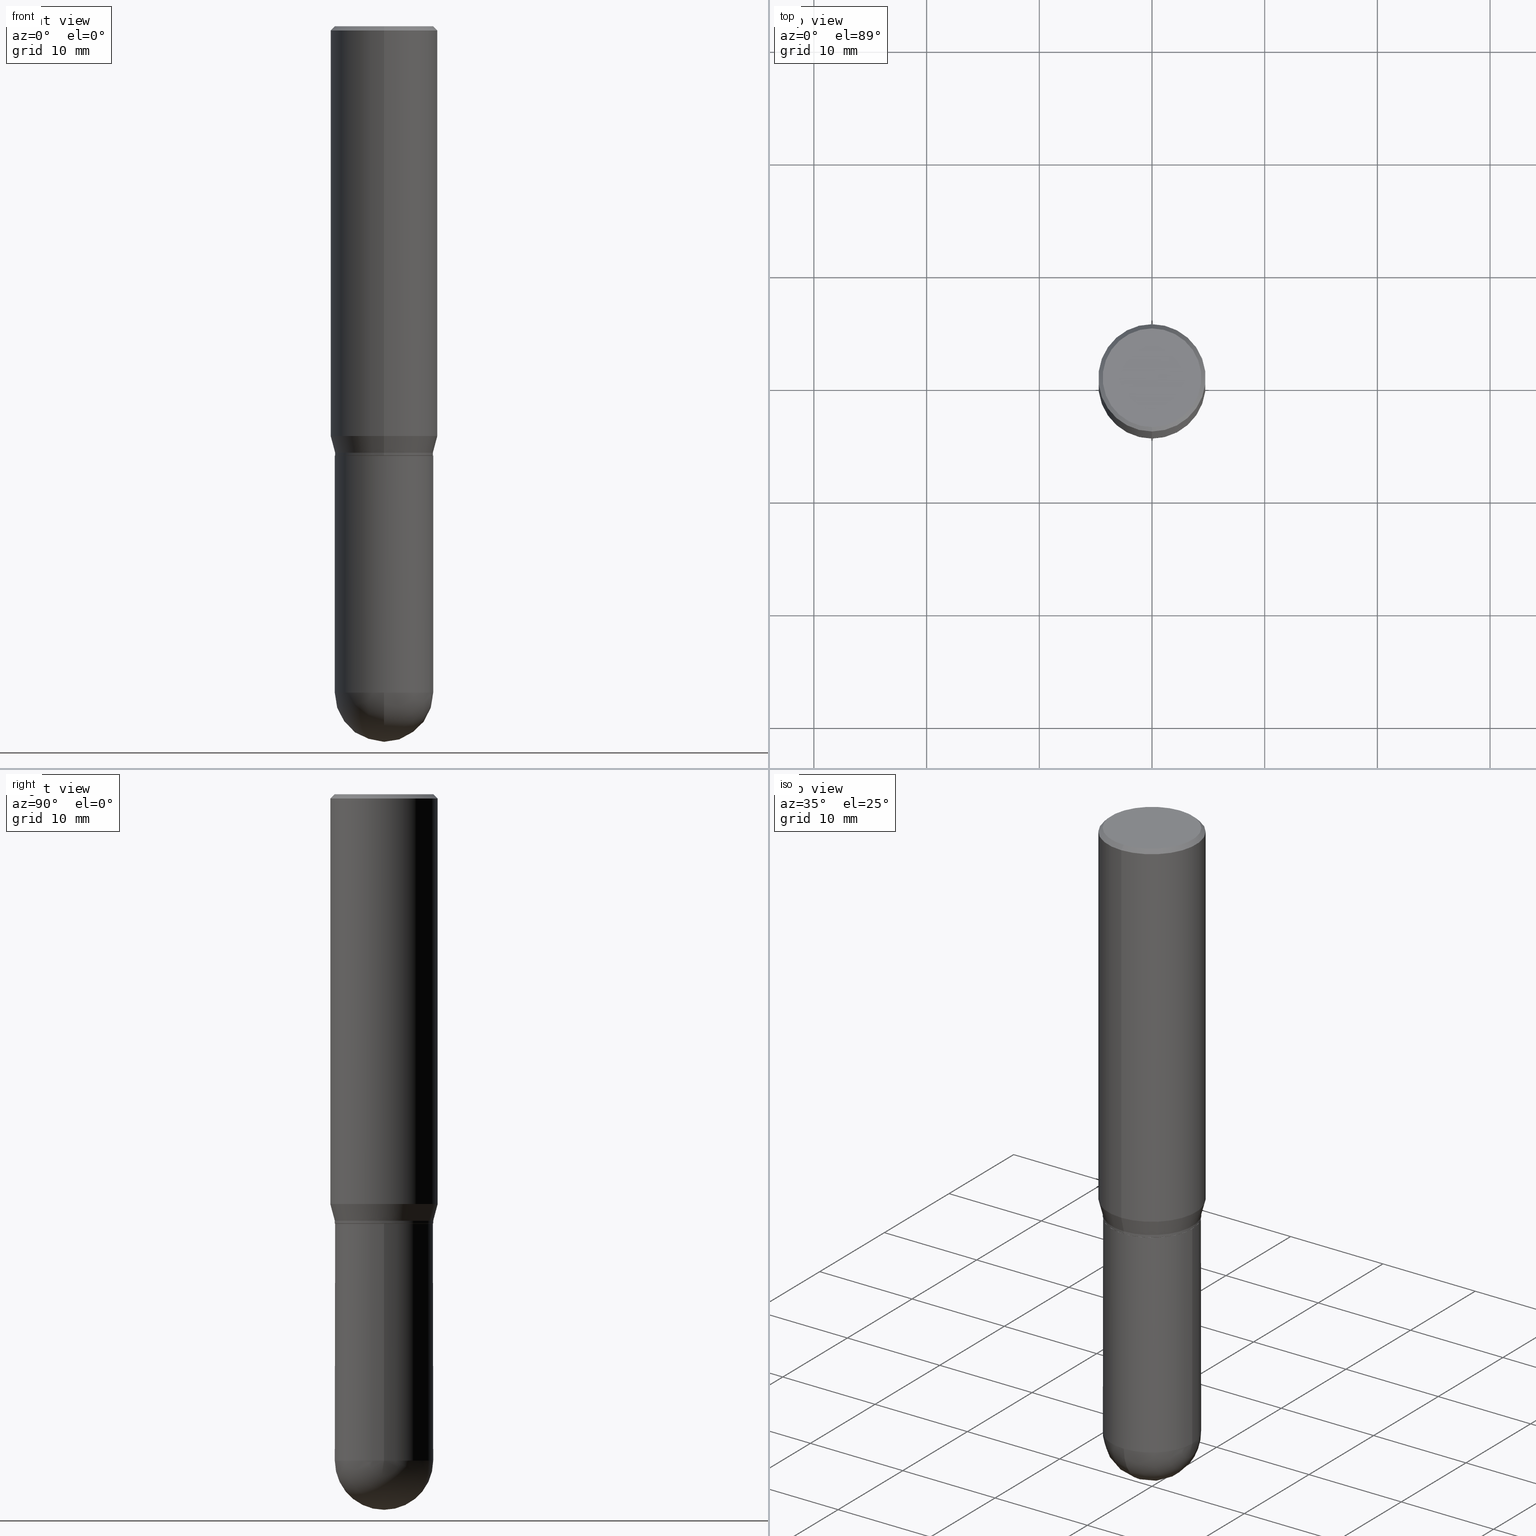
[diagram: canonical four-view strip — front | top / right | iso, engineering-drawing reading convention]
A machine part, canonical four-view strip (front | top / right | iso — engineering-drawing reading convention). The complete STEP part file that produces these views, byte-faithful:
ISO-10303-21;
HEADER;
FILE_DESCRIPTION (( 'STEP AP203' ),
    '1' );
FILE_NAME ('39344.STEP',
    '2024-03-08T12:49:14',
    ( '' ),
    ( '' ),
    'SwSTEP 2.0',
    'SolidWorks 2023',
    '' );
FILE_SCHEMA (( 'CONFIG_CONTROL_DESIGN' ));
ENDSEC;

DATA;
#1 = DIRECTION ( 'NONE',  ( -2.445468806185136597E-29, 3.491481338843145583E-15, 1.000000000000000000 ) ) ;
#2 = EDGE_CURVE ( 'NONE', #310, #448, #352, .T. ) ;
#3 = AXIS2_PLACEMENT_3D ( 'NONE', #31, #268, #236 ) ;
#4 = VECTOR ( 'NONE', #227, 39.37007874015748854 ) ;
#5 = PERSON_AND_ORGANIZATION ( #390, #77 ) ;
#6 = EDGE_CURVE ( 'NONE', #347, #501, #214, .T. ) ;
#7 = CARTESIAN_POINT ( 'NONE',  ( 3.643209233054260103E-29, -5.203079486218066937E-15, -1.490000000000000213 ) ) ;
#8 = DIRECTION ( 'NONE',  ( 1.000000000000000000, -6.982962677686268288E-15, 0.000000000000000000 ) ) ;
#9 = ORIENTED_EDGE ( 'NONE', *, *, #51, .T. ) ;
#10 = DIRECTION ( 'NONE',  ( 1.000000000000000000, -6.982962677686265922E-15, 4.876176775795935793E-29 ) ) ;
#11 = DIRECTION ( 'NONE',  ( -2.445106867821650572E-29, 3.491999655179909992E-15, 1.000000000000000000 ) ) ;
#12 = CIRCLE ( 'NONE', #130, 0.1719000000000000250 ) ;
#13 = DIRECTION ( 'NONE',  ( 6.982962677686266711E-15, 1.000000000000000000, 0.000000000000000000 ) ) ;
#14 = DIRECTION ( 'NONE',  ( -2.445106867821650572E-29, 3.491999655179909992E-15, 1.000000000000000000 ) ) ;
#15 = EDGE_CURVE ( 'NONE', #379, #398, #186, .T. ) ;
#16 = ORIENTED_EDGE ( 'NONE', *, *, #237, .F. ) ;
#17 = DIRECTION ( 'NONE',  ( -4.851104656540965064E-15, -0.7071067811865501263, -0.7071067811865449082 ) ) ;
#18 = PERSON_AND_ORGANIZATION ( #390, #77 ) ;
#19 = EDGE_LOOP ( 'NONE', ( #500, #196 ) ) ;
#20 = ORIENTED_EDGE ( 'NONE', *, *, #112, .T. ) ;
#21 = EDGE_CURVE ( 'NONE', #34, #261, #469, .T. ) ;
#22 = DIRECTION ( 'NONE',  ( -2.445468806185136597E-29, 3.491481338843145583E-15, 1.000000000000000000 ) ) ;
#23 = ORIENTED_EDGE ( 'NONE', *, *, #21, .F. ) ;
#24 = AXIS2_PLACEMENT_3D ( 'NONE', #99, #414, #134 ) ;
#25 = AXIS2_PLACEMENT_3D ( 'NONE', #380, #480, #137 ) ;
#26 = DIRECTION ( 'NONE',  ( -4.937700262164715281E-15, -0.7071067811865691111, 0.7071067811865257013 ) ) ;
#27 = CARTESIAN_POINT ( 'NONE',  ( 1.200371284294326039E-15, 0.1718999999999918094, -2.328100000000000946 ) ) ;
#28 = LINE ( 'NONE', #190, #353 ) ;
#29 = DATE_AND_TIME ( #416, #280 ) ;
#30 = ORIENTED_EDGE ( 'NONE', *, *, #433, .T. ) ;
#31 = CARTESIAN_POINT ( 'NONE',  ( 3.666437748298565435E-29, -5.236253482942275262E-15, -1.499500000000000277 ) ) ;
#32 = DIRECTION ( 'NONE',  ( -2.445468806185136877E-29, 3.491481338843145188E-15, 1.000000000000000000 ) ) ;
#33 = ADVANCED_FACE ( 'NONE', ( #169 ), #511, .F. ) ;
#34 = VERTEX_POINT ( 'NONE', #321 ) ;
#35 = PLANE ( 'NONE',  #437 ) ;
#36 = VERTEX_POINT ( 'NONE', #477 ) ;
#37 = AXIS2_PLACEMENT_3D ( 'NONE', #57, #378, #258 ) ;
#38 = CARTESIAN_POINT ( 'NONE',  ( -1.200371284294268255E-15, -0.1718999999999998862, 6.002747407254260600E-16 ) ) ;
#39 = VECTOR ( 'NONE', #26, 39.37007874015748854 ) ;
#40 = ORIENTED_EDGE ( 'NONE', *, *, #474, .F. ) ;
#41 = FACE_OUTER_BOUND ( 'NONE', #493, .T. ) ;
#42 = VERTEX_POINT ( 'NONE', #120 ) ;
#43 = PERSON_AND_ORGANIZATION_ROLE ( 'design_owner' ) ;
#44 = AXIS2_PLACEMENT_3D ( 'NONE', #210, #22, #185 ) ;
#45 = AXIS2_PLACEMENT_3D ( 'NONE', #503, #184, #143 ) ;
#46 = CARTESIAN_POINT ( 'NONE',  ( -1.200371284294232165E-15, -0.1719000000000051598, -1.499499999999999611 ) ) ;
#47 = EDGE_LOOP ( 'NONE', ( #335, #467, #418, #183 ) ) ;
#48 = AXIS2_PLACEMENT_3D ( 'NONE', #450, #14, #290 ) ;
#49 = DATE_AND_TIME ( #323, #471 ) ;
#50 = AXIS2_PLACEMENT_3D ( 'NONE', #89, #247, #401 ) ;
#51 = EDGE_CURVE ( 'NONE', #459, #42, #168, .T. ) ;
#52 = CARTESIAN_POINT ( 'NONE',  ( -0.1719000000000000250, 1.221422962771612397E-15, -8.455649420148184581E-30 ) ) ;
#53 = DIRECTION ( 'NONE',  ( 5.024295867788231995E-15, 0.7071067811865739960, 0.7071067811865208164 ) ) ;
#54 = DATE_AND_TIME ( #445, #487 ) ;
#55 = CC_DESIGN_PERSON_AND_ORGANIZATION_ASSIGNMENT ( #218, #489, ( #216 ) ) ;
#56 = CARTESIAN_POINT ( 'NONE',  ( 3.643209233054260103E-29, -5.203079486218066937E-15, -1.490000000000000213 ) ) ;
#57 = CARTESIAN_POINT ( 'NONE',  ( 0.000000000000000000, 0.000000000000000000, 0.000000000000000000 ) ) ;
#58 = DIRECTION ( 'NONE',  ( -2.445106867821650572E-29, 3.491999655179909992E-15, 1.000000000000000000 ) ) ;
#59 = COORDINATED_UNIVERSAL_TIME_OFFSET ( 5, 0, .BEHIND. ) ;
#60 = AXIS2_PLACEMENT_3D ( 'NONE', #305, #505, #154 ) ;
#61 = APPLICATION_CONTEXT ( 'configuration controlled 3d designs of mechanical parts and assemblies' ) ;
#62 = ORIENTED_EDGE ( 'NONE', *, *, #87, .T. ) ;
#63 = CARTESIAN_POINT ( 'NONE',  ( 3.500855129308181168E-29, -4.999775292141012103E-15, -1.431780007401925348 ) ) ;
#64 = EDGE_CURVE ( 'NONE', #149, #459, #476, .T. ) ;
#65 = CARTESIAN_POINT ( 'NONE',  ( 1.217870249092847983E-15, 0.1713999999999947510, -1.500000000000000666 ) ) ;
#66 = AXIS2_PLACEMENT_3D ( 'NONE', #394, #198, #508 ) ;
#67 = EDGE_LOOP ( 'NONE', ( #191, #269, #220, #463 ) ) ;
#68 = CONICAL_SURFACE ( 'NONE', #369, 0.1718999999999998862, 0.2617993877991499629 ) ;
#69 = CARTESIAN_POINT ( 'NONE',  ( 0.1718999999999999695, -6.437593292558987418E-15, -1.500000000000000222 ) ) ;
#70 = ADVANCED_FACE ( 'NONE', ( #223 ), #255, .T. ) ;
#71 = DIRECTION ( 'NONE',  ( -2.445106867821650572E-29, 3.491999655179909992E-15, 1.000000000000000000 ) ) ;
#72 = DIRECTION ( 'NONE',  ( -1.000000000000000000, 6.982962677686265922E-15, -4.876176775795935793E-29 ) ) ;
#73 = EDGE_LOOP ( 'NONE', ( #40, #211, #16, #152 ) ) ;
#74 = DIRECTION ( 'NONE',  ( 2.438088387897960049E-29, -3.491481338843145188E-15, -1.000000000000000000 ) ) ;
#75 = ORIENTED_EDGE ( 'NONE', *, *, #312, .F. ) ;
#76 = ORIENTED_EDGE ( 'NONE', *, *, #446, .F. ) ;
#77 = ORGANIZATION ( 'UNSPECIFIED', 'UNSPECIFIED', '' ) ;
#78 = ORIENTED_EDGE ( 'NONE', *, *, #434, .F. ) ;
#79 = CARTESIAN_POINT ( 'NONE',  ( 3.668203209277704895E-29, -5.237222008264718177E-15, -1.500000000000000222 ) ) ;
#80 = CARTESIAN_POINT ( 'NONE',  ( -1.309305502066174614E-15, -0.1875000000000000833, -0.01499999999999933678 ) ) ;
#81 = PERSON_AND_ORGANIZATION ( #390, #77 ) ;
#82 = EDGE_CURVE ( 'NONE', #448, #310, #295, .T. ) ;
#83 = VECTOR ( 'NONE', #171, 39.37007874015748143 ) ;
#84 = CC_DESIGN_PERSON_AND_ORGANIZATION_ASSIGNMENT ( #282, #245, ( #337 ) ) ;
#85 = CARTESIAN_POINT ( 'NONE',  ( 5.678595619168622984E-29, -8.149569383438070914E-15, -2.328100000000000058 ) ) ;
#86 = MANIFOLD_SOLID_BREP ( 'Body-Move/Copy2[1]', #285 ) ;
#87 = EDGE_CURVE ( 'NONE', #431, #457, #265, .T. ) ;
#88 = CALENDAR_DATE ( 2024, 8, 3 ) ;
#89 = CARTESIAN_POINT ( 'NONE',  ( 3.667660301732476418E-29, -5.237999482769865382E-15, -1.500000000000000222 ) ) ;
#90 = CONICAL_SURFACE ( 'NONE', #158, 0.1713999999999999690, 0.7853981633974824739 ) ;
#91 = CARTESIAN_POINT ( 'NONE',  ( 6.106321861207344902E-29, -8.739229186346536619E-15, -2.500000000000000000 ) ) ;
#92 = AXIS2_PLACEMENT_3D ( 'NONE', #444, #95, #250 ) ;
#93 = ADVANCED_FACE ( 'NONE', ( #174 ), #492, .T. ) ;
#94 = DATE_AND_TIME ( #88, #438 ) ;
#95 = DIRECTION ( 'NONE',  ( -2.445106867821650572E-29, 3.491999655179909992E-15, 1.000000000000000000 ) ) ;
#96 = CYLINDRICAL_SURFACE ( 'NONE', #37, 0.1875000000000000278 ) ;
#97 = ADVANCED_FACE ( 'NONE', ( #222 ), #96, .T. ) ;
#98 = DIRECTION ( 'NONE',  ( -2.445468806185136877E-29, 3.491481338843145188E-15, 1.000000000000000000 ) ) ;
#99 = CARTESIAN_POINT ( 'NONE',  ( 3.667660301732473984E-31, -5.237999482769862300E-17, -0.01499999999999999077 ) ) ;
#100 = CIRCLE ( 'NONE', #225, 0.1718999999999999417 ) ;
#101 = DIRECTION ( 'NONE',  ( -2.445468806185136597E-29, 3.491481338843145583E-15, 1.000000000000000000 ) ) ;
#102 = CARTESIAN_POINT ( 'NONE',  ( 0.000000000000000000, 0.000000000000000000, 0.000000000000000000 ) ) ;
#103 = LINE ( 'NONE', #65, #279 ) ;
#104 = ADVANCED_FACE ( 'NONE', ( #453 ), #313, .T. ) ;
#105 = ORIENTED_EDGE ( 'NONE', *, *, #161, .T. ) ;
#106 = VERTEX_POINT ( 'NONE', #91 ) ;
#107 = ORIENTED_EDGE ( 'NONE', *, *, #239, .T. ) ;
#108 = PERSON_AND_ORGANIZATION ( #390, #77 ) ;
#109 = ORIENTED_EDGE ( 'NONE', *, *, #433, .F. ) ;
#110 = DIRECTION ( 'NONE',  ( -6.982962677686265922E-15, -1.000000000000000000, 3.491999655179909597E-15 ) ) ;
#111 = ORIENTED_EDGE ( 'NONE', *, *, #456, .T. ) ;
#112 = EDGE_CURVE ( 'NONE', #149, #233, #481, .T. ) ;
#113 = ORIENTED_EDGE ( 'NONE', *, *, #162, .T. ) ;
#114 = AXIS2_PLACEMENT_3D ( 'NONE', #294, #447, #8 ) ;
#115 = AXIS2_PLACEMENT_3D ( 'NONE', #79, #1, #509 ) ;
#116 = DIRECTION ( 'NONE',  ( -2.445106867821650572E-29, 3.491999655179910386E-15, 1.000000000000000000 ) ) ;
#117 = DIRECTION ( 'NONE',  ( -2.445106867821650572E-29, 3.491999655179909992E-15, 1.000000000000000000 ) ) ;
#118 = MECHANICAL_CONTEXT ( 'NONE', #197, 'mechanical' ) ;
#119 = CIRCLE ( 'NONE', #44, 0.1719000000000000250 ) ;
#120 = CARTESIAN_POINT ( 'NONE',  ( 1.332267629550222953E-15, 0.1874999999999999445, -0.01500000000000064650 ) ) ;
#121 = ADVANCED_BREP_SHAPE_REPRESENTATION ( '39344', ( #86, #251, #150 ), #234 ) ;
#122 = APPROVAL_DATE_TIME ( #325, #405 ) ;
#123 = FACE_OUTER_BOUND ( 'NONE', #454, .T. ) ;
#124 = CARTESIAN_POINT ( 'NONE',  ( 1.332267629550187651E-15, 0.1875000000000000278, -6.547499353462331727E-16 ) ) ;
#125 = APPROVAL_STATUS ( 'not_yet_approved' ) ;
#126 = AXIS2_PLACEMENT_3D ( 'NONE', #406, #11, #483 ) ;
#127 = CIRCLE ( 'NONE', #60, 0.1713999999999999690 ) ;
#128 = FACE_OUTER_BOUND ( 'NONE', #67, .T. ) ;
#129 = COORDINATED_UNIVERSAL_TIME_OFFSET ( 5, 0, .BEHIND. ) ;
#130 = AXIS2_PLACEMENT_3D ( 'NONE', #316, #163, #319 ) ;
#131 = EDGE_LOOP ( 'NONE', ( #392, #375, #226, #192 ) ) ;
#132 = CARTESIAN_POINT ( 'NONE',  ( 5.678595619168622984E-29, -8.149569383438070914E-15, -2.328100000000000058 ) ) ;
#133 = DIRECTION ( 'NONE',  ( -2.445106867821650572E-29, 3.491999655179909992E-15, 1.000000000000000000 ) ) ;
#134 = DIRECTION ( 'NONE',  ( 6.982962677686265922E-15, 1.000000000000000000, -3.494488891895536035E-15 ) ) ;
#135 = PERSON_AND_ORGANIZATION_ROLE ( 'classification_officer' ) ;
#136 = VERTEX_POINT ( 'NONE', #494 ) ;
#137 = DIRECTION ( 'NONE',  ( -6.982962677686265922E-15, -1.000000000000000000, 3.494488891895536035E-15 ) ) ;
#138 = CARTESIAN_POINT ( 'NONE',  ( -1.200371284294231968E-15, -0.1719000000000050765, -1.489999999999999769 ) ) ;
#139 = ORIENTED_EDGE ( 'NONE', *, *, #162, .F. ) ;
#140 = EDGE_CURVE ( 'NONE', #347, #36, #260, .T. ) ;
#141 = VERTEX_POINT ( 'NONE', #138 ) ;
#142 = ORIENTED_EDGE ( 'NONE', *, *, #2, .T. ) ;
#143 = DIRECTION ( 'NONE',  ( -6.982962677686265922E-15, -1.000000000000000000, 3.494488891895536035E-15 ) ) ;
#144 = DIRECTION ( 'NONE',  ( 2.445106867821650572E-29, -3.491999655179909992E-15, -1.000000000000000000 ) ) ;
#145 = EDGE_CURVE ( 'NONE', #36, #141, #502, .T. ) ;
#146 = ORIENTED_EDGE ( 'NONE', *, *, #166, .T. ) ;
#147 = AXIS2_PLACEMENT_3D ( 'NONE', #63, #133, #328 ) ;
#148 = ADVANCED_FACE ( 'NONE', ( #217 ), #90, .T. ) ;
#149 = VERTEX_POINT ( 'NONE', #334 ) ;
#150 = AXIS2_PLACEMENT_3D ( 'NONE', #428, #395, #235 ) ;
#151 = DIRECTION ( 'NONE',  ( -2.445106867821650572E-29, 3.491999655179909992E-15, 1.000000000000000000 ) ) ;
#152 = ORIENTED_EDGE ( 'NONE', *, *, #161, .F. ) ;
#153 = EDGE_CURVE ( 'NONE', #34, #347, #103, .T. ) ;
#154 = DIRECTION ( 'NONE',  ( -6.982962677686266711E-15, -1.000000000000000000, 3.187687273820611169E-15 ) ) ;
#155 = CALENDAR_DATE ( 2024, 8, 3 ) ;
#156 = ORIENTED_EDGE ( 'NONE', *, *, #452, .F. ) ;
#157 = CARTESIAN_POINT ( 'NONE',  ( 3.666437748298565435E-29, -5.236253482942275262E-15, -1.499500000000000277 ) ) ;
#158 = AXIS2_PLACEMENT_3D ( 'NONE', #298, #58, #178 ) ;
#159 = LENGTH_MEASURE_WITH_UNIT ( LENGTH_MEASURE( 0.02539999999999999897 ), #466 );
#160 = AXIS2_PLACEMENT_3D ( 'NONE', #7, #71, #348 ) ;
#161 = EDGE_CURVE ( 'NONE', #507, #136, #119, .T. ) ;
#162 = EDGE_CURVE ( 'NONE', #310, #42, #488, .T. ) ;
#163 = DIRECTION ( 'NONE',  ( -2.445468806185136597E-29, 3.491481338843145583E-15, 1.000000000000000000 ) ) ;
#164 = PRODUCT ( '39344', '39344', '', ( #118 ) ) ;
#165 = CARTESIAN_POINT ( 'NONE',  ( 1.204561061900881047E-15, 0.1725000000000000144, -5.978724494156464949E-16 ) ) ;
#166 = EDGE_CURVE ( 'NONE', #448, #233, #402, .T. ) ;
#167 = AXIS2_PLACEMENT_3D ( 'NONE', #157, #512, #204 ) ;
#168 = LINE ( 'NONE', #411, #409 ) ;
#169 = FACE_OUTER_BOUND ( 'NONE', #19, .T. ) ;
#170 = DESIGN_CONTEXT ( 'detailed design', #61, 'design' ) ;
#171 = DIRECTION ( 'NONE',  ( -2.445106867821650572E-29, 3.491999655179910386E-15, 1.000000000000000000 ) ) ;
#172 = ORIENTED_EDGE ( 'NONE', *, *, #237, .T. ) ;
#173 = AXIS2_PLACEMENT_3D ( 'NONE', #327, #289, #10 ) ;
#174 = FACE_OUTER_BOUND ( 'NONE', #131, .T. ) ;
#175 = ADVANCED_FACE ( 'NONE', ( #128 ), #287, .T. ) ;
#176 = ADVANCED_FACE ( 'NONE', ( #212 ), #35, .F. ) ;
#177 = FACE_OUTER_BOUND ( 'NONE', #180, .T. ) ;
#178 = DIRECTION ( 'NONE',  ( -6.982962677686266711E-15, -1.000000000000000000, 3.187687273820611169E-15 ) ) ;
#179 = EDGE_LOOP ( 'NONE', ( #407, #30, #388, #231 ) ) ;
#180 = EDGE_LOOP ( 'NONE', ( #194, #506, #308, #499 ) ) ;
#181 = DIRECTION ( 'NONE',  ( -2.445106867821650572E-29, 3.491999655179909992E-15, 1.000000000000000000 ) ) ;
#182 = DIRECTION ( 'NONE',  ( -2.445106867821650572E-29, 3.491999655179910386E-15, 1.000000000000000000 ) ) ;
#183 = ORIENTED_EDGE ( 'NONE', *, *, #6, .F. ) ;
#184 = DIRECTION ( 'NONE',  ( -2.445106867821650572E-29, 3.491999655179909992E-15, 1.000000000000000000 ) ) ;
#185 = DIRECTION ( 'NONE',  ( 1.000000000000000000, -6.982962677686271444E-15, 0.000000000000000000 ) ) ;
#186 = CIRCLE ( 'NONE', #66, 0.1719000000000000250 ) ;
#187 = CC_DESIGN_APPROVAL ( #479, ( #216 ) ) ;
#188 = DIRECTION ( 'NONE',  ( -2.445106867821650572E-29, 3.491999655179909992E-15, 1.000000000000000000 ) ) ;
#189 = CARTESIAN_POINT ( 'NONE',  ( 3.667660301732473984E-31, -5.237999482769862300E-17, -0.01499999999999999077 ) ) ;
#190 = CARTESIAN_POINT ( 'NONE',  ( 0.1719000000000000250, -1.200371284294269241E-15, 8.382147877593214480E-30 ) ) ;
#191 = ORIENTED_EDGE ( 'NONE', *, *, #140, .F. ) ;
#192 = ORIENTED_EDGE ( 'NONE', *, *, #484, .F. ) ;
#193 = CYLINDRICAL_SURFACE ( 'NONE', #364, 0.1875000000000000278 ) ;
#194 = ORIENTED_EDGE ( 'NONE', *, *, #275, .F. ) ;
#195 = ADVANCED_FACE ( 'NONE', ( #343 ), #349, .T. ) ;
#196 = ORIENTED_EDGE ( 'NONE', *, *, #64, .T. ) ;
#197 = APPLICATION_CONTEXT ( 'configuration controlled 3d designs of mechanical parts and assemblies' ) ;
#198 = DIRECTION ( 'NONE',  ( -2.445468806185136597E-29, 3.491481338843145583E-15, 1.000000000000000000 ) ) ;
#199 = CYLINDRICAL_SURFACE ( 'NONE', #330, 0.1719000000000000250 ) ;
#200 = EDGE_CURVE ( 'NONE', #136, #431, #28, .T. ) ;
#201 = CARTESIAN_POINT ( 'NONE',  ( 3.667660301732476418E-29, -5.237999482769865382E-15, -1.500000000000000222 ) ) ;
#202 = VECTOR ( 'NONE', #98, 39.37007874015748143 ) ;
#203 = DIRECTION ( 'NONE',  ( -1.000000000000000000, 7.105427357601001070E-15, -4.926315508542082329E-29 ) ) ;
#204 = DIRECTION ( 'NONE',  ( -6.982962677686265922E-15, -1.000000000000000000, 3.178415350394723252E-15 ) ) ;
#205 = ORIENTED_EDGE ( 'NONE', *, *, #425, .T. ) ;
#206 = APPROVAL ( #412, 'UNSPECIFIED' ) ;
#207 = VECTOR ( 'NONE', #17, 39.37007874015748143 ) ;
#208 = DIRECTION ( 'NONE',  ( -2.445106867821650572E-29, 3.491999655179909992E-15, 1.000000000000000000 ) ) ;
#209 = FACE_OUTER_BOUND ( 'NONE', #382, .T. ) ;
#210 = CARTESIAN_POINT ( 'NONE',  ( 5.693295927679617284E-29, -8.128517704960729139E-15, -2.328100000000000058 ) ) ;
#211 = ORIENTED_EDGE ( 'NONE', *, *, #275, .T. ) ;
#212 = FACE_OUTER_BOUND ( 'NONE', #490, .T. ) ;
#213 = APPROVAL_DATE_TIME ( #54, #206 ) ;
#214 = CIRCLE ( 'NONE', #3, 0.1718999999999999140 ) ;
#215 = LINE ( 'NONE', #52, #202 ) ;
#216 = PRODUCT_DEFINITION_FORMATION_WITH_SPECIFIED_SOURCE ( 'ANY', '', #164, .NOT_KNOWN. ) ;
#217 = FACE_OUTER_BOUND ( 'NONE', #336, .T. ) ;
#218 = PERSON_AND_ORGANIZATION ( #390, #77 ) ;
#219 = APPROVAL_PERSON_ORGANIZATION ( #5, #206, #404 ) ;
#220 = ORIENTED_EDGE ( 'NONE', *, *, #484, .T. ) ;
#221 = DIRECTION ( 'NONE',  ( 6.982962677686265922E-15, 1.000000000000000000, -3.178415350394722463E-15 ) ) ;
#222 = FACE_OUTER_BOUND ( 'NONE', #303, .T. ) ;
#223 = FACE_OUTER_BOUND ( 'NONE', #367, .T. ) ;
#224 = CC_DESIGN_PERSON_AND_ORGANIZATION_ASSIGNMENT ( #278, #43, ( #164 ) ) ;
#225 = AXIS2_PLACEMENT_3D ( 'NONE', #85, #203, #366 ) ;
#226 = ORIENTED_EDGE ( 'NONE', *, *, #368, .F. ) ;
#227 = DIRECTION ( 'NONE',  ( 1.839019923739597949E-15, 0.2588190451025246253, 0.9659258262890670910 ) ) ;
#228 = ORIENTED_EDGE ( 'NONE', *, *, #112, .F. ) ;
#229 = LINE ( 'NONE', #351, #4 ) ;
#230 = CARTESIAN_POINT ( 'NONE',  ( -0.1719000000000000250, -5.461446893841112247E-15, -2.328100000000000058 ) ) ;
#231 = ORIENTED_EDGE ( 'NONE', *, *, #456, .F. ) ;
#232 = CLOSED_SHELL ( 'NONE', ( #93, #148, #419, #415, #440, #249, #97, #70, #33, #329, #104, #175 ) ) ;
#233 = VERTEX_POINT ( 'NONE', #80 ) ;
#234 =( GEOMETRIC_REPRESENTATION_CONTEXT ( 3 ) GLOBAL_UNCERTAINTY_ASSIGNED_CONTEXT ( ( #363 ) ) GLOBAL_UNIT_ASSIGNED_CONTEXT ( ( #435, #320, #432 ) ) REPRESENTATION_CONTEXT ( 'NONE', 'WORKASPACE' ) );
#235 = DIRECTION ( 'NONE',  ( 1.000000000000000000, 0.000000000000000000, 0.000000000000000000 ) ) ;
#236 = DIRECTION ( 'NONE',  ( -6.982962677686265922E-15, -1.000000000000000000, 3.178415350394723252E-15 ) ) ;
#237 = EDGE_CURVE ( 'NONE', #136, #379, #12, .T. ) ;
#238 = ORIENTED_EDGE ( 'NONE', *, *, #434, .T. ) ;
#239 = EDGE_CURVE ( 'NONE', #398, #457, #215, .T. ) ;
#240 = AXIS2_PLACEMENT_3D ( 'NONE', #408, #188, #460 ) ;
#241 = CIRCLE ( 'NONE', #115, 0.1718999999999999695 ) ;
#242 = APPROVAL_STATUS ( 'not_yet_approved' ) ;
#243 = LINE ( 'NONE', #38, #451 ) ;
#244 = CYLINDRICAL_SURFACE ( 'NONE', #173, 0.1719000000000000250 ) ;
#245 = PERSON_AND_ORGANIZATION_ROLE ( 'creator' ) ;
#246 = CC_DESIGN_APPROVAL ( #206, ( #470 ) ) ;
#247 = DIRECTION ( 'NONE',  ( -2.445106867821650011E-29, 3.491999655179910386E-15, 1.000000000000000000 ) ) ;
#248 = CARTESIAN_POINT ( 'NONE',  ( 1.221422962771611214E-15, 0.1718999999999998862, -6.002747407254260600E-16 ) ) ;
#249 = ADVANCED_FACE ( 'NONE', ( #252 ), #68, .T. ) ;
#250 = DIRECTION ( 'NONE',  ( -6.982962677686265922E-15, -1.000000000000000000, 3.491999655179909597E-15 ) ) ;
#251 = MANIFOLD_SOLID_BREP ( 'Body-Move/Copy2[2]', #232 ) ;
#252 = FACE_OUTER_BOUND ( 'NONE', #254, .T. ) ;
#253 = DIRECTION ( 'NONE',  ( -2.445106867821650572E-29, 3.491999655179909992E-15, 1.000000000000000000 ) ) ;
#254 = EDGE_LOOP ( 'NONE', ( #109, #424, #111, #426 ) ) ;
#255 = CONICAL_SURFACE ( 'NONE', #24, 0.1875000000000000278, 0.7853981633974485010 ) ;
#256 = CARTESIAN_POINT ( 'NONE',  ( -2.199369276727651250E-46, 3.141047476091932851E-32, 8.994982205776030959E-18 ) ) ;
#257 = AXIS2_PLACEMENT_3D ( 'NONE', #458, #341, #302 ) ;
#258 = DIRECTION ( 'NONE',  ( -6.982962677686265922E-15, -1.000000000000000000, 3.491999655179909597E-15 ) ) ;
#259 = ORIENTED_EDGE ( 'NONE', *, *, #64, .F. ) ;
#260 = LINE ( 'NONE', #248, #495 ) ;
#261 = VERTEX_POINT ( 'NONE', #338 ) ;
#262 = CARTESIAN_POINT ( 'NONE',  ( -1.196879802955389158E-15, -0.1714000000000052149, -1.499999999999999556 ) ) ;
#263 = DIRECTION ( 'NONE',  ( 6.982962677686265922E-15, 1.000000000000000000, -3.178415350394722463E-15 ) ) ;
#264 = ORIENTED_EDGE ( 'NONE', *, *, #510, .F. ) ;
#265 = CIRCLE ( 'NONE', #114, 0.1718999999999999695 ) ;
#266 = AXIS2_PLACEMENT_3D ( 'NONE', #256, #208, #449 ) ;
#267 = EDGE_LOOP ( 'NONE', ( #259, #20, #272, #346 ) ) ;
#268 = DIRECTION ( 'NONE',  ( -2.445106867821650572E-29, 3.491999655179909992E-15, 1.000000000000000000 ) ) ;
#269 = ORIENTED_EDGE ( 'NONE', *, *, #6, .T. ) ;
#270 = ORIENTED_EDGE ( 'NONE', *, *, #239, .F. ) ;
#271 = ADVANCED_FACE ( 'NONE', ( #209 ), #244, .T. ) ;
#272 = ORIENTED_EDGE ( 'NONE', *, *, #324, .T. ) ;
#273 = CIRCLE ( 'NONE', #25, 0.1875000000000000278 ) ;
#274 = PERSON_AND_ORGANIZATION_ROLE ( 'creator' ) ;
#275 = EDGE_CURVE ( 'NONE', #106, #379, #362, .T. ) ;
#276 = CARTESIAN_POINT ( 'NONE',  ( -1.221422962771555008E-15, -0.1719000000000081296, -2.328099999999999614 ) ) ;
#277 = DIRECTION ( 'NONE',  ( 2.445106867821650011E-29, -3.491999655179910386E-15, -1.000000000000000000 ) ) ;
#278 = PERSON_AND_ORGANIZATION ( #390, #77 ) ;
#279 = VECTOR ( 'NONE', #53, 39.37007874015748854 ) ;
#280 = LOCAL_TIME ( 7, 49, 14.00000000000000000, #417 ) ;
#281 = ADVANCED_FACE ( 'NONE', ( #177 ), #491, .T. ) ;
#282 = PERSON_AND_ORGANIZATION ( #390, #77 ) ;
#283 = PLANE ( 'NONE',  #50 ) ;
#284 = DIRECTION ( 'NONE',  ( 4.937700262164548831E-15, 0.7071067811865452413, -0.7071067811865497932 ) ) ;
#285 = CLOSED_SHELL ( 'NONE', ( #271, #281, #176, #195, #497 ) ) ;
#286 = APPROVAL_PERSON_ORGANIZATION ( #81, #405, #311 ) ;
#287 = CYLINDRICAL_SURFACE ( 'NONE', #92, 0.1718999999999998862 ) ;
#288 = DATE_TIME_ROLE ( 'classification_date' ) ;
#289 = DIRECTION ( 'NONE',  ( -2.445468806185136597E-29, 3.491481338843145583E-15, 1.000000000000000000 ) ) ;
#290 = DIRECTION ( 'NONE',  ( -6.982962677686265922E-15, -1.000000000000000000, 3.491999655179909597E-15 ) ) ;
#291 = SECURITY_CLASSIFICATION_LEVEL ( 'unclassified' ) ;
#292 = ORIENTED_EDGE ( 'NONE', *, *, #82, .T. ) ;
#293 = DIRECTION ( 'NONE',  ( -1.000000000000000000, 6.982962677686265922E-15, -4.883557194083112340E-29 ) ) ;
#294 = CARTESIAN_POINT ( 'NONE',  ( 3.668203209277704895E-29, -5.237222008264718177E-15, -1.500000000000000222 ) ) ;
#295 = CIRCLE ( 'NONE', #147, 0.1875000000000000278 ) ;
#296 = CC_DESIGN_DATE_AND_TIME_ASSIGNMENT ( #49, #288, ( #470 ) ) ;
#297 = CARTESIAN_POINT ( 'NONE',  ( 5.678595619168622984E-29, -8.149569383438070914E-15, -2.328100000000000058 ) ) ;
#298 = CARTESIAN_POINT ( 'NONE',  ( 3.667660301732476418E-29, -5.237999482769865382E-15, -1.500000000000000222 ) ) ;
#299 = LINE ( 'NONE', #262, #39 ) ;
#300 = FACE_OUTER_BOUND ( 'NONE', #267, .T. ) ;
#301 = ORIENTED_EDGE ( 'NONE', *, *, #15, .T. ) ;
#302 = DIRECTION ( 'NONE',  ( -6.982962677686265922E-15, -1.000000000000000000, 3.178415350394723646E-15 ) ) ;
#303 = EDGE_LOOP ( 'NONE', ( #139, #142, #146, #78 ) ) ;
#304 = DIRECTION ( 'NONE',  ( 6.982962677686265922E-15, 1.000000000000000000, -3.494488891895536035E-15 ) ) ;
#305 = CARTESIAN_POINT ( 'NONE',  ( 3.667660301732476418E-29, -5.237999482769865382E-15, -1.500000000000000222 ) ) ;
#306 = CIRCLE ( 'NONE', #160, 0.1718999999999998862 ) ;
#307 = ORIENTED_EDGE ( 'NONE', *, *, #87, .F. ) ;
#308 = ORIENTED_EDGE ( 'NONE', *, *, #425, .F. ) ;
#309 = CARTESIAN_POINT ( 'NONE',  ( 0.000000000000000000, 0.000000000000000000, 0.000000000000000000 ) ) ;
#310 = VERTEX_POINT ( 'NONE', #333 ) ;
#311 = APPROVAL_ROLE ( '' ) ;
#312 = EDGE_CURVE ( 'NONE', #459, #149, #410, .T. ) ;
#313 = CONICAL_SURFACE ( 'NONE', #361, 0.1713999999999999690, 0.7853981633974824739 ) ;
#314 = AXIS2_PLACEMENT_3D ( 'NONE', #498, #455, #263 ) ;
#315 = CC_DESIGN_SECURITY_CLASSIFICATION ( #470, ( #216 ) ) ;
#316 = CARTESIAN_POINT ( 'NONE',  ( 5.693295927679617284E-29, -8.128517704960729139E-15, -2.328100000000000058 ) ) ;
#317 = APPLICATION_PROTOCOL_DEFINITION ( 'international standard', 'config_control_design', 1994, #197 ) ;
#318 = DIRECTION ( 'NONE',  ( -6.982962677686266711E-15, -1.000000000000000000, 3.187687273820611169E-15 ) ) ;
#319 = DIRECTION ( 'NONE',  ( 1.000000000000000000, -6.982962677686271444E-15, 0.000000000000000000 ) ) ;
#320 =( NAMED_UNIT ( * ) PLANE_ANGLE_UNIT ( ) SI_UNIT ( $, .RADIAN. ) );
#321 = CARTESIAN_POINT ( 'NONE',  ( 1.219646605932247841E-15, 0.1713999999999947510, -1.500000000000000666 ) ) ;
#322 = VECTOR ( 'NONE', #355, 39.37007874015748143 ) ;
#323 = CALENDAR_DATE ( 2024, 8, 3 ) ;
#324 = EDGE_CURVE ( 'NONE', #233, #42, #273, .T. ) ;
#325 = DATE_AND_TIME ( #155, #376 ) ;
#326 = DIRECTION ( 'NONE',  ( -6.982962677686265922E-15, -1.000000000000000000, 3.178415350394723646E-15 ) ) ;
#327 = CARTESIAN_POINT ( 'NONE',  ( 0.000000000000000000, 0.000000000000000000, 0.000000000000000000 ) ) ;
#328 = DIRECTION ( 'NONE',  ( -6.982962677686265922E-15, -1.000000000000000000, 2.913971193241880372E-15 ) ) ;
#329 = ADVANCED_FACE ( 'NONE', ( #123 ), #283, .F. ) ;
#330 = AXIS2_PLACEMENT_3D ( 'NONE', #309, #397, #439 ) ;
#331 = COORDINATED_UNIVERSAL_TIME_OFFSET ( 5, 0, .BEHIND. ) ;
#332 = CARTESIAN_POINT ( 'NONE',  ( 3.667660301732476418E-29, -5.237999482769865382E-15, -1.500000000000000222 ) ) ;
#333 = CARTESIAN_POINT ( 'NONE',  ( 1.332267629550222558E-15, 0.1874999999999950318, -1.431780007401926014 ) ) ;
#334 = CARTESIAN_POINT ( 'NONE',  ( -1.234889639598875176E-15, -0.1725000000000000144, 6.113649227243105668E-16 ) ) ;
#335 = ORIENTED_EDGE ( 'NONE', *, *, #153, .F. ) ;
#336 = EDGE_LOOP ( 'NONE', ( #389, #358, #156, #76 ) ) ;
#337 = PRODUCT_DEFINITION ( 'UNKNOWN', '', #216, #170 ) ;
#338 = CARTESIAN_POINT ( 'NONE',  ( -1.196879802955389158E-15, -0.1714000000000052149, -1.499999999999999556 ) ) ;
#339 = DIRECTION ( 'NONE',  ( -2.445106867821650572E-29, 3.491999655179909992E-15, 1.000000000000000000 ) ) ;
#340 = ORIENTED_EDGE ( 'NONE', *, *, #370, .F. ) ;
#341 = DIRECTION ( 'NONE',  ( -2.445106867821650572E-29, 3.491999655179909992E-15, 1.000000000000000000 ) ) ;
#342 = CIRCLE ( 'NONE', #430, 0.1719000000000000250 ) ;
#343 = FACE_OUTER_BOUND ( 'NONE', #73, .T. ) ;
#344 = COORDINATED_UNIVERSAL_TIME_OFFSET ( 5, 0, .BEHIND. ) ;
#345 = APPROVAL_DATE_TIME ( #29, #479 ) ;
#346 = ORIENTED_EDGE ( 'NONE', *, *, #51, .F. ) ;
#347 = VERTEX_POINT ( 'NONE', #371 ) ;
#348 = DIRECTION ( 'NONE',  ( -6.982962677686265922E-15, -1.000000000000000000, 3.178415350394723646E-15 ) ) ;
#349 = SPHERICAL_SURFACE ( 'NONE', #314, 0.1718999999999999417 ) ;
#350 = ORIENTED_EDGE ( 'NONE', *, *, #200, .T. ) ;
#351 = CARTESIAN_POINT ( 'NONE',  ( 1.221422962771647501E-15, 0.1718999999999946959, -1.490000000000000879 ) ) ;
#352 = CIRCLE ( 'NONE', #240, 0.1875000000000000278 ) ;
#353 = VECTOR ( 'NONE', #32, 39.37007874015748143 ) ;
#354 = ORIENTED_EDGE ( 'NONE', *, *, #166, .F. ) ;
#355 = DIRECTION ( 'NONE',  ( -1.807323732225328167E-15, -0.2588190451025179084, 0.9659258262890690894 ) ) ;
#356 = ORIENTED_EDGE ( 'NONE', *, *, #510, .T. ) ;
#357 = PRODUCT_RELATED_PRODUCT_CATEGORY ( 'detail', '', ( #164 ) ) ;
#358 = ORIENTED_EDGE ( 'NONE', *, *, #153, .T. ) ;
#359 = PRODUCT_DEFINITION_SHAPE ( 'NONE', 'NONE',  #337 ) ;
#360 = CARTESIAN_POINT ( 'NONE',  ( -0.1718999999999999695, -5.461446893841111458E-15, -1.500000000000000222 ) ) ;
#361 = AXIS2_PLACEMENT_3D ( 'NONE', #332, #253, #381 ) ;
#362 = CIRCLE ( 'NONE', #391, 0.1718999999999999417 ) ;
#363 = UNCERTAINTY_MEASURE_WITH_UNIT (LENGTH_MEASURE( 1.000000000000000082E-05 ), #435, 'distance_accuracy_value', 'NONE');
#364 = AXIS2_PLACEMENT_3D ( 'NONE', #102, #151, #110 ) ;
#365 = CARTESIAN_POINT ( 'NONE',  ( -1.309305502066140101E-15, -0.1875000000000049960, -1.431780007401924903 ) ) ;
#366 = DIRECTION ( 'NONE',  ( -7.105427357601001070E-15, -1.000000000000000000, 0.000000000000000000 ) ) ;
#367 = EDGE_LOOP ( 'NONE', ( #228, #75, #9, #238 ) ) ;
#368 = EDGE_CURVE ( 'NONE', #141, #36, #306, .T. ) ;
#369 = AXIS2_PLACEMENT_3D ( 'NONE', #56, #181, #326 ) ;
#370 = EDGE_CURVE ( 'NONE', #261, #34, #127, .T. ) ;
#371 = CARTESIAN_POINT ( 'NONE',  ( 1.221422962771647501E-15, 0.1718999999999946682, -1.499500000000000721 ) ) ;
#372 = CARTESIAN_POINT ( 'NONE',  ( -1.309305502066175008E-15, -0.1875000000000000278, 6.547499353462331727E-16 ) ) ;
#373 = CARTESIAN_POINT ( 'NONE',  ( -1.286343374582161576E-15, -0.1875000000000000833, -0.01499999999999933678 ) ) ;
#374 = SHAPE_DEFINITION_REPRESENTATION ( #359, #121 ) ;
#375 = ORIENTED_EDGE ( 'NONE', *, *, #140, .T. ) ;
#376 = LOCAL_TIME ( 7, 49, 14.00000000000000000, #344 ) ;
#377 = DIRECTION ( 'NONE',  ( 1.000000000000000000, -6.982962677686265922E-15, 4.883557194083112340E-29 ) ) ;
#378 = DIRECTION ( 'NONE',  ( -2.445106867821650572E-29, 3.491999655179909992E-15, 1.000000000000000000 ) ) ;
#379 = VERTEX_POINT ( 'NONE', #27 ) ;
#380 = CARTESIAN_POINT ( 'NONE',  ( 3.667660301732473984E-31, -5.237999482769862300E-17, -0.01499999999999999077 ) ) ;
#381 = DIRECTION ( 'NONE',  ( -6.982962677686266711E-15, -1.000000000000000000, 3.187687273820611169E-15 ) ) ;
#382 = EDGE_LOOP ( 'NONE', ( #301, #107, #307, #423, #172 ) ) ;
#383 = FACE_OUTER_BOUND ( 'NONE', #465, .T. ) ;
#384 = DIRECTION ( 'NONE',  ( -6.982962677686266711E-15, -1.000000000000000000, 3.491999655179909992E-15 ) ) ;
#385 = AXIS2_PLACEMENT_3D ( 'NONE', #442, #339, #384 ) ;
#386 = AXIS2_PLACEMENT_3D ( 'NONE', #297, #293, #221 ) ;
#387 = ORIENTED_EDGE ( 'NONE', *, *, #324, .F. ) ;
#388 = ORIENTED_EDGE ( 'NONE', *, *, #82, .F. ) ;
#389 = ORIENTED_EDGE ( 'NONE', *, *, #370, .T. ) ;
#390 = PERSON ( 'UNSPECIFIED', 'UNSPECIFIED', 'UNSPECIFIED', ('UNSPECIFIED'), ('UNSPECIFIED'), ('UNSPECIFIED') ) ;
#391 = AXIS2_PLACEMENT_3D ( 'NONE', #132, #377, #13 ) ;
#392 = ORIENTED_EDGE ( 'NONE', *, *, #452, .T. ) ;
#393 = CC_DESIGN_PERSON_AND_ORGANIZATION_ASSIGNMENT ( #108, #274, ( #216 ) ) ;
#394 = CARTESIAN_POINT ( 'NONE',  ( 5.693295927679617284E-29, -8.128517704960729139E-15, -2.328100000000000058 ) ) ;
#395 = DIRECTION ( 'NONE',  ( 0.000000000000000000, 0.000000000000000000, 1.000000000000000000 ) ) ;
#396 = DIRECTION ( 'NONE',  ( 6.982962677686265922E-15, 1.000000000000000000, -3.491999655179910386E-15 ) ) ;
#397 = DIRECTION ( 'NONE',  ( -2.445468806185136597E-29, 3.491481338843145583E-15, 1.000000000000000000 ) ) ;
#398 = VERTEX_POINT ( 'NONE', #230 ) ;
#399 = CC_DESIGN_APPROVAL ( #405, ( #337 ) ) ;
#400 = DATE_TIME_ROLE ( 'creation_date' ) ;
#401 = DIRECTION ( 'NONE',  ( -6.982962677686265922E-15, -1.000000000000000000, 3.491999655179910386E-15 ) ) ;
#402 = LINE ( 'NONE', #372, #83 ) ;
#403 = DIRECTION ( 'NONE',  ( -2.445106867821650572E-29, 3.491999655179910386E-15, 1.000000000000000000 ) ) ;
#404 = APPROVAL_ROLE ( '' ) ;
#405 = APPROVAL ( #242, 'UNSPECIFIED' ) ;
#406 = CARTESIAN_POINT ( 'NONE',  ( 3.643209233054260103E-29, -5.203079486218066937E-15, -1.490000000000000213 ) ) ;
#407 = ORIENTED_EDGE ( 'NONE', *, *, #368, .T. ) ;
#408 = CARTESIAN_POINT ( 'NONE',  ( 3.500855129308181168E-29, -4.999775292141012103E-15, -1.431780007401925348 ) ) ;
#409 = VECTOR ( 'NONE', #284, 39.37007874015748143 ) ;
#410 = CIRCLE ( 'NONE', #266, 0.1725000000000000144 ) ;
#411 = CARTESIAN_POINT ( 'NONE',  ( 1.309305502066175600E-15, 0.1874999999999999445, -0.01500000000000064650 ) ) ;
#412 = APPROVAL_STATUS ( 'not_yet_approved' ) ;
#413 = DIRECTION ( 'NONE',  ( 1.000000000000000000, -6.982962677686271444E-15, 0.000000000000000000 ) ) ;
#414 = DIRECTION ( 'NONE',  ( 2.445106867821650572E-29, -3.491999655179909992E-15, -1.000000000000000000 ) ) ;
#415 = ADVANCED_FACE ( 'NONE', ( #383 ), #193, .T. ) ;
#416 = CALENDAR_DATE ( 2024, 8, 3 ) ;
#417 = COORDINATED_UNIVERSAL_TIME_OFFSET ( 5, 0, .BEHIND. ) ;
#418 = ORIENTED_EDGE ( 'NONE', *, *, #446, .T. ) ;
#419 = ADVANCED_FACE ( 'NONE', ( #300 ), #443, .T. ) ;
#420 = VECTOR ( 'NONE', #403, 39.37007874015748143 ) ;
#421 = AXIS2_PLACEMENT_3D ( 'NONE', #189, #144, #304 ) ;
#422 = CARTESIAN_POINT ( 'NONE',  ( 1.200371284294305726E-15, 0.1718999999999947514, -1.500000000000000666 ) ) ;
#423 = ORIENTED_EDGE ( 'NONE', *, *, #200, .F. ) ;
#424 = ORIENTED_EDGE ( 'NONE', *, *, #145, .T. ) ;
#425 = EDGE_CURVE ( 'NONE', #398, #507, #342, .T. ) ;
#426 = ORIENTED_EDGE ( 'NONE', *, *, #2, .F. ) ;
#427 = DIMENSIONAL_EXPONENTS ( 1.000000000000000000, 0.000000000000000000, 0.000000000000000000, 0.000000000000000000, 0.000000000000000000, 0.000000000000000000, 0.000000000000000000 ) ;
#428 = CARTESIAN_POINT ( 'NONE',  ( 0.000000000000000000, 0.000000000000000000, 0.000000000000000000 ) ) ;
#429 = AXIS2_PLACEMENT_3D ( 'NONE', #165, #277, #396 ) ;
#430 = AXIS2_PLACEMENT_3D ( 'NONE', #496, #101, #413 ) ;
#431 = VERTEX_POINT ( 'NONE', #69 ) ;
#432 =( NAMED_UNIT ( * ) SI_UNIT ( $, .STERADIAN. ) SOLID_ANGLE_UNIT ( ) );
#433 = EDGE_CURVE ( 'NONE', #36, #310, #229, .T. ) ;
#434 = EDGE_CURVE ( 'NONE', #42, #233, #486, .T. ) ;
#435 =( CONVERSION_BASED_UNIT ( 'INCH', #159 ) LENGTH_UNIT ( ) NAMED_UNIT ( #427 ) );
#436 = APPLICATION_PROTOCOL_DEFINITION ( 'international standard', 'config_control_design', 1994, #61 ) ;
#437 = AXIS2_PLACEMENT_3D ( 'NONE', #422, #74, #72 ) ;
#438 = LOCAL_TIME ( 7, 49, 14.00000000000000000, #331 ) ;
#439 = DIRECTION ( 'NONE',  ( 1.000000000000000000, -6.982962677686265922E-15, 4.876176775795935793E-29 ) ) ;
#440 = ADVANCED_FACE ( 'NONE', ( #464 ), #478, .T. ) ;
#441 = CC_DESIGN_DATE_AND_TIME_ASSIGNMENT ( #94, #400, ( #337 ) ) ;
#442 = CARTESIAN_POINT ( 'NONE',  ( -2.199369276727651250E-46, 3.141047476091932851E-32, 8.994982205776030959E-18 ) ) ;
#443 = CONICAL_SURFACE ( 'NONE', #421, 0.1875000000000000278, 0.7853981633974485010 ) ;
#444 = CARTESIAN_POINT ( 'NONE',  ( 0.000000000000000000, 0.000000000000000000, 0.000000000000000000 ) ) ;
#445 = CALENDAR_DATE ( 2024, 8, 3 ) ;
#446 = EDGE_CURVE ( 'NONE', #261, #501, #299, .T. ) ;
#447 = DIRECTION ( 'NONE',  ( -2.445468806185136597E-29, 3.491481338843145583E-15, 1.000000000000000000 ) ) ;
#448 = VERTEX_POINT ( 'NONE', #365 ) ;
#449 = DIRECTION ( 'NONE',  ( -6.982962677686266711E-15, -1.000000000000000000, 3.491999655179909992E-15 ) ) ;
#450 = CARTESIAN_POINT ( 'NONE',  ( 0.000000000000000000, 0.000000000000000000, 0.000000000000000000 ) ) ;
#451 = VECTOR ( 'NONE', #116, 39.37007874015748143 ) ;
#452 = EDGE_CURVE ( 'NONE', #501, #347, #461, .T. ) ;
#453 = FACE_OUTER_BOUND ( 'NONE', #47, .T. ) ;
#454 = EDGE_LOOP ( 'NONE', ( #340, #23 ) ) ;
#455 = DIRECTION ( 'NONE',  ( -1.000000000000000000, 6.982962677686265922E-15, -4.883557194083112340E-29 ) ) ;
#456 = EDGE_CURVE ( 'NONE', #141, #448, #468, .T. ) ;
#457 = VERTEX_POINT ( 'NONE', #360 ) ;
#458 = CARTESIAN_POINT ( 'NONE',  ( 3.643209233054260103E-29, -5.203079486218066937E-15, -1.490000000000000213 ) ) ;
#459 = VERTEX_POINT ( 'NONE', #475 ) ;
#460 = DIRECTION ( 'NONE',  ( -6.982962677686265922E-15, -1.000000000000000000, 2.913971193241880372E-15 ) ) ;
#461 = CIRCLE ( 'NONE', #167, 0.1718999999999999140 ) ;
#462 = APPROVAL_ROLE ( '' ) ;
#463 = ORIENTED_EDGE ( 'NONE', *, *, #145, .F. ) ;
#464 = FACE_OUTER_BOUND ( 'NONE', #179, .T. ) ;
#465 = EDGE_LOOP ( 'NONE', ( #292, #113, #387, #354 ) ) ;
#466 =( LENGTH_UNIT ( ) NAMED_UNIT ( * ) SI_UNIT ( $, .METRE. ) );
#467 = ORIENTED_EDGE ( 'NONE', *, *, #21, .T. ) ;
#468 = LINE ( 'NONE', #473, #322 ) ;
#469 = CIRCLE ( 'NONE', #485, 0.1713999999999999690 ) ;
#470 = SECURITY_CLASSIFICATION ( '', '', #291 ) ;
#471 = LOCAL_TIME ( 7, 49, 14.00000000000000000, #129 ) ;
#472 = CC_DESIGN_PERSON_AND_ORGANIZATION_ASSIGNMENT ( #18, #135, ( #470 ) ) ;
#473 = CARTESIAN_POINT ( 'NONE',  ( -1.200371284294231968E-15, -0.1719000000000050765, -1.489999999999999769 ) ) ;
#474 = EDGE_CURVE ( 'NONE', #106, #507, #100, .T. ) ;
#475 = CARTESIAN_POINT ( 'NONE',  ( 1.256933281983528323E-15, 0.1725000000000000144, -5.933749583127584710E-16 ) ) ;
#476 = CIRCLE ( 'NONE', #385, 0.1725000000000000144 ) ;
#477 = CARTESIAN_POINT ( 'NONE',  ( 1.276845296160934931E-15, 0.1718999999999946959, -1.490000000000000879 ) ) ;
#478 = CONICAL_SURFACE ( 'NONE', #257, 0.1718999999999998862, 0.2617993877991499629 ) ;
#479 = APPROVAL ( #125, 'UNSPECIFIED' ) ;
#480 = DIRECTION ( 'NONE',  ( -2.445106867821650572E-29, 3.491999655179909992E-15, 1.000000000000000000 ) ) ;
#481 = LINE ( 'NONE', #373, #207 ) ;
#482 = PERSON_AND_ORGANIZATION ( #390, #77 ) ;
#483 = DIRECTION ( 'NONE',  ( -6.982962677686265922E-15, -1.000000000000000000, 3.178415350394723646E-15 ) ) ;
#484 = EDGE_CURVE ( 'NONE', #501, #141, #243, .T. ) ;
#485 = AXIS2_PLACEMENT_3D ( 'NONE', #201, #117, #318 ) ;
#486 = CIRCLE ( 'NONE', #45, 0.1875000000000000278 ) ;
#487 = LOCAL_TIME ( 7, 49, 14.00000000000000000, #59 ) ;
#488 = LINE ( 'NONE', #124, #420 ) ;
#489 = PERSON_AND_ORGANIZATION_ROLE ( 'design_supplier' ) ;
#490 = EDGE_LOOP ( 'NONE', ( #62, #356 ) ) ;
#491 = SPHERICAL_SURFACE ( 'NONE', #386, 0.1718999999999999417 ) ;
#492 = CYLINDRICAL_SURFACE ( 'NONE', #48, 0.1718999999999998862 ) ;
#493 = EDGE_LOOP ( 'NONE', ( #270, #205, #105, #350, #264 ) ) ;
#494 = CARTESIAN_POINT ( 'NONE',  ( 0.1719000000000000250, -7.883241140906993293E-15, -2.328100000000000058 ) ) ;
#495 = VECTOR ( 'NONE', #182, 39.37007874015748143 ) ;
#496 = CARTESIAN_POINT ( 'NONE',  ( 5.693295927679617284E-29, -8.128517704960729139E-15, -2.328100000000000058 ) ) ;
#497 = ADVANCED_FACE ( 'NONE', ( #41 ), #199, .T. ) ;
#498 = CARTESIAN_POINT ( 'NONE',  ( 5.678595619168622984E-29, -8.149569383438070914E-15, -2.328100000000000058 ) ) ;
#499 = ORIENTED_EDGE ( 'NONE', *, *, #15, .F. ) ;
#500 = ORIENTED_EDGE ( 'NONE', *, *, #312, .T. ) ;
#501 = VERTEX_POINT ( 'NONE', #46 ) ;
#502 = CIRCLE ( 'NONE', #126, 0.1718999999999998862 ) ;
#503 = CARTESIAN_POINT ( 'NONE',  ( 3.667660301732473984E-31, -5.237999482769862300E-17, -0.01499999999999999077 ) ) ;
#504 = APPROVAL_PERSON_ORGANIZATION ( #482, #479, #462 ) ;
#505 = DIRECTION ( 'NONE',  ( -2.445106867821650572E-29, 3.491999655179909992E-15, 1.000000000000000000 ) ) ;
#506 = ORIENTED_EDGE ( 'NONE', *, *, #474, .T. ) ;
#507 = VERTEX_POINT ( 'NONE', #276 ) ;
#508 = DIRECTION ( 'NONE',  ( 1.000000000000000000, -6.982962677686271444E-15, 0.000000000000000000 ) ) ;
#509 = DIRECTION ( 'NONE',  ( 1.000000000000000000, -6.982962677686268288E-15, 0.000000000000000000 ) ) ;
#510 = EDGE_CURVE ( 'NONE', #457, #431, #241, .T. ) ;
#511 = PLANE ( 'NONE',  #429 ) ;
#512 = DIRECTION ( 'NONE',  ( -2.445106867821650572E-29, 3.491999655179909992E-15, 1.000000000000000000 ) ) ;
ENDSEC;
END-ISO-10303-21;
